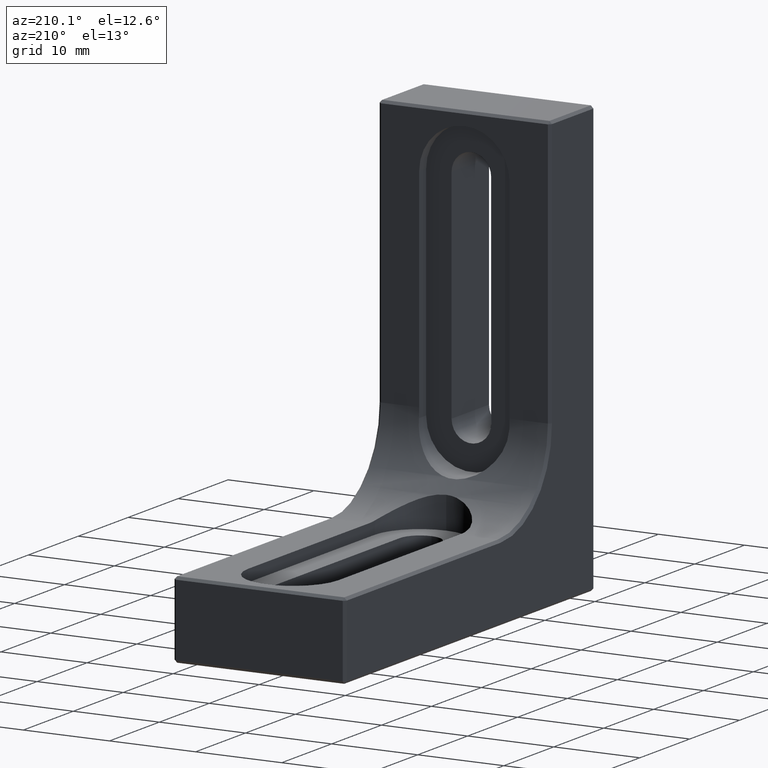
[diagram: clean part render]
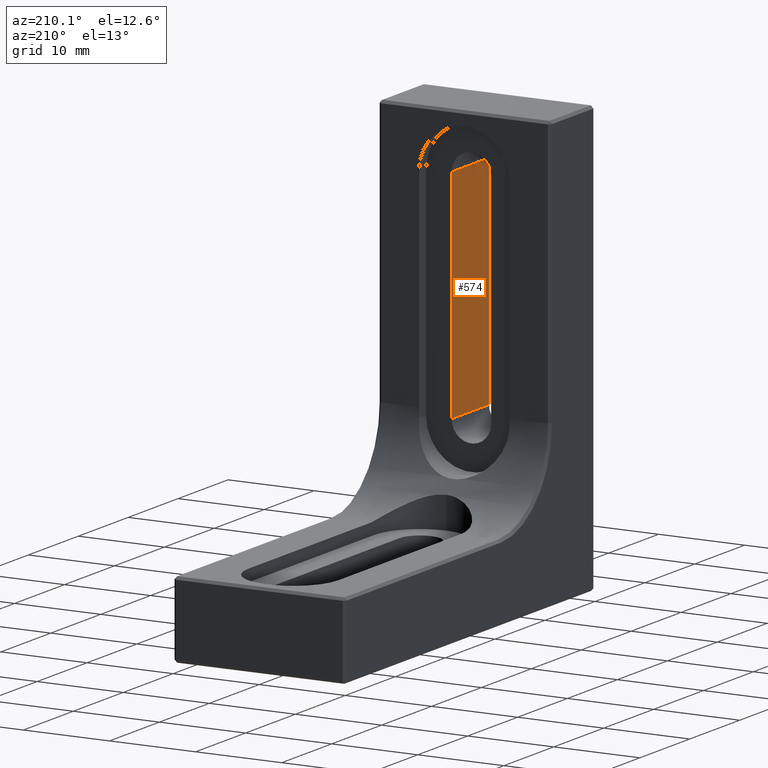
[diagram: same view with one face highlighted and labeled with its STEP entity id]
A machine part, auxiliary view. The second image highlights one B-rep face of the part: STEP entity #574.
In plain terms, the highlighted planar face has unit normal (1, 0, -0).
Its self-contained STEP definition (entity closure, byte-faithful):
#27 = EDGE_CURVE ( 'NONE', #466, #1330, #616, .T. ) ;
#34 = ORIENTED_EDGE ( 'NONE', *, *, #1536, .F. ) ;
#35 = CARTESIAN_POINT ( 'NONE',  ( 2.299999999999998934, -6.938893903907228378E-15, 17.78999999999999559 ) ) ;
#48 = VECTOR ( 'NONE', #1683, 1000.000000000000000 ) ;
#66 = VECTOR ( 'NONE', #263, 1000.000000000000000 ) ;
#67 = DIRECTION ( 'NONE',  ( -1.365923996832131856E-16, 0.000000000000000000, -1.000000000000000000 ) ) ;
#120 = DIRECTION ( 'NONE',  ( 1.000000000000000000, 0.000000000000000000, -1.365923996832131856E-16 ) ) ;
#136 = LINE ( 'NONE', #961, #66 ) ;
#162 = CARTESIAN_POINT ( 'NONE',  ( 2.300000000000002487, -6.938893903907228378E-15, 43.18999999999999062 ) ) ;
#263 = DIRECTION ( 'NONE',  ( -1.365923996832131856E-16, -0.000000000000000000, -1.000000000000000000 ) ) ;
#313 = EDGE_CURVE ( 'NONE', #645, #1330, #1259, .T. ) ;
#377 = ORIENTED_EDGE ( 'NONE', *, *, #709, .F. ) ;
#379 = ORIENTED_EDGE ( 'NONE', *, *, #313, .F. ) ;
#418 = EDGE_LOOP ( 'NONE', ( #379, #377, #34, #664 ) ) ;
#420 = CARTESIAN_POINT ( 'NONE',  ( 2.299999999999998934, 7.500000000000000000, 17.78999999999999559 ) ) ;
#456 = CARTESIAN_POINT ( 'NONE',  ( 2.300000000000002487, -6.938893903907228378E-15, 43.18999999999999062 ) ) ;
#466 = VERTEX_POINT ( 'NONE', #162 ) ;
#509 = AXIS2_PLACEMENT_3D ( 'NONE', #1539, #120, #67 ) ;
#574 = ADVANCED_FACE ( 'NONE', ( #900 ), #1396, .F. ) ;
#616 = LINE ( 'NONE', #456, #671 ) ;
#645 = VERTEX_POINT ( 'NONE', #1445 ) ;
#664 = ORIENTED_EDGE ( 'NONE', *, *, #27, .T. ) ;
#671 = VECTOR ( 'NONE', #874, 1000.000000000000000 ) ;
#709 = EDGE_CURVE ( 'NONE', #1501, #645, #1713, .T. ) ;
#874 = DIRECTION ( 'NONE',  ( -0.000000000000000000, 1.000000000000000000, -0.000000000000000000 ) ) ;
#900 = FACE_OUTER_BOUND ( 'NONE', #418, .T. ) ;
#961 = CARTESIAN_POINT ( 'NONE',  ( 2.299999999999998934, -6.938893903907228378E-15, 17.78999999999999559 ) ) ;
#1158 = VECTOR ( 'NONE', #1572, 1000.000000000000000 ) ;
#1259 = LINE ( 'NONE', #420, #48 ) ;
#1330 = VERTEX_POINT ( 'NONE', #1384 ) ;
#1384 = CARTESIAN_POINT ( 'NONE',  ( 2.300000000000002487, 7.500000000000000000, 43.18999999999999062 ) ) ;
#1396 = PLANE ( 'NONE',  #509 ) ;
#1445 = CARTESIAN_POINT ( 'NONE',  ( 2.299999999999998934, 7.500000000000000000, 17.78999999999999559 ) ) ;
#1501 = VERTEX_POINT ( 'NONE', #1684 ) ;
#1536 = EDGE_CURVE ( 'NONE', #466, #1501, #136, .T. ) ;
#1539 = CARTESIAN_POINT ( 'NONE',  ( 2.299999999999998934, -6.938893903907228378E-15, 17.78999999999999559 ) ) ;
#1572 = DIRECTION ( 'NONE',  ( -0.000000000000000000, 1.000000000000000000, -0.000000000000000000 ) ) ;
#1683 = DIRECTION ( 'NONE',  ( 1.365923996832131856E-16, -0.000000000000000000, 1.000000000000000000 ) ) ;
#1684 = CARTESIAN_POINT ( 'NONE',  ( 2.299999999999998934, -6.938893903907228378E-15, 17.78999999999999559 ) ) ;
#1713 = LINE ( 'NONE', #35, #1158 ) ;